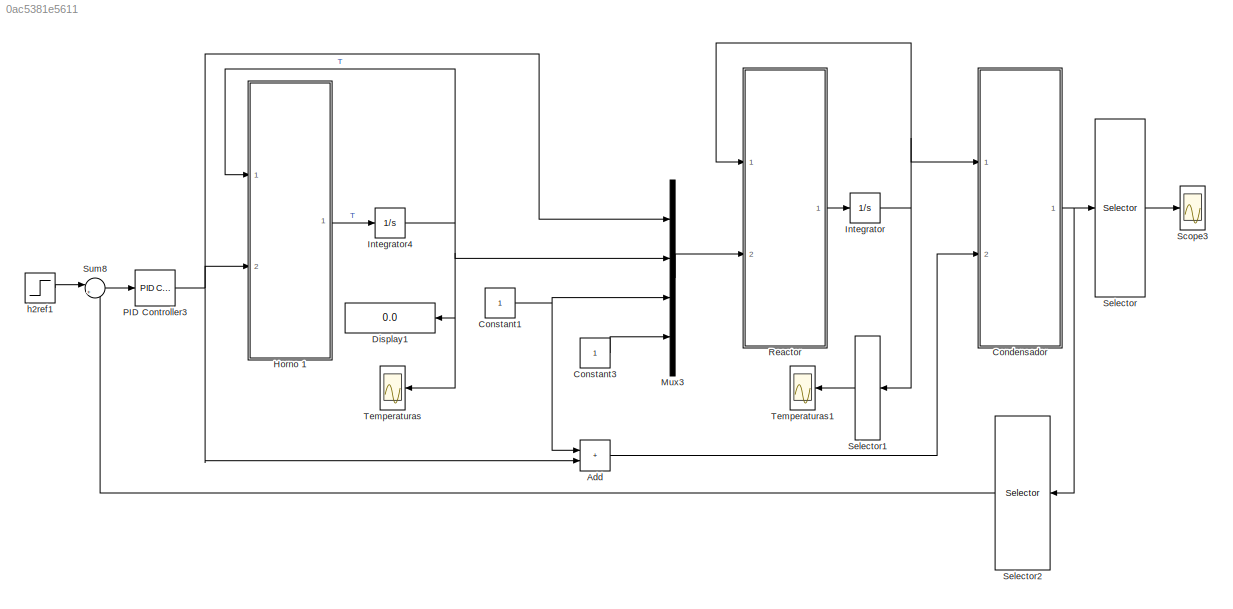
MODEL slx_0ac5381e5611
KIND model
CONFIG AbsTol = auto
CONFIG EnableMultiTasking = off
CONFIG FixedStep = auto
CONFIG MaxStep = auto
CONFIG MinStep = auto
CONFIG RelTol = 1e-3
CONFIG SampleTimeConstraint = Unconstrained
CONFIG Solver = VariableStepAuto
CONFIG SolverName = VariableStepAuto
CONFIG StartTime = 0.0
CONFIG StopTime = 10.0
BLOCK [Sum] Add
  IconShape = rectangular
  Ports = [2, 1]
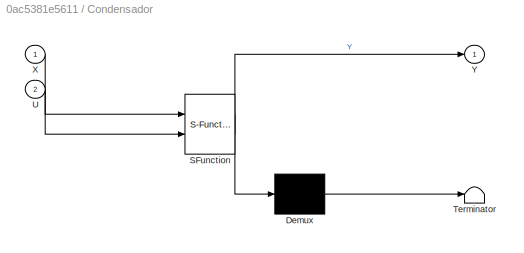
BLOCK [SubSystem] Condensador
  ErrorFcn = Stateflow.Translate.translate
  PermitHierarchicalResolution = ExplicitOnly
  Ports = [2, 1]
  RequestExecContextInheritance = off
  SFBlockType = MATLAB Function
  TreatAsAtomicUnit = on
BLOCK [Demux] Condensador/ Demux 
  Outputs = 1
  Ports = [1, 1]
BLOCK [S-Function] Condensador/ SFunction 
  EnableBusSupport = on
  FunctionName = sf_sfun
  PortCounts = [2 2]
  Ports = [2, 2]
  SFcnIsStateOwnerBlock = off
  SFunctionDeploymentMode = off
  Tag = Stateflow S-Function 3
BLOCK [Terminator] Condensador/ Terminator 
BLOCK [Inport] Condensador/U
  Port = 2
BLOCK [Inport] Condensador/X
BLOCK [Outport] Condensador/Y
BLOCK [Constant] Constant1
BLOCK [Constant] Constant3
BLOCK [Display] Display1
  Decimation = 1
  Ports = [1]
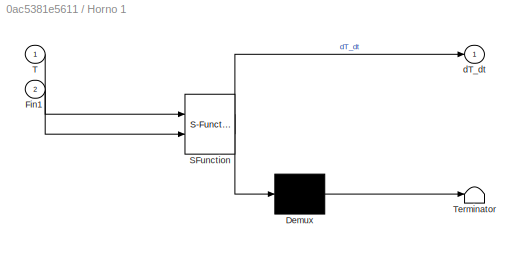
BLOCK [SubSystem] Horno 1
  ErrorFcn = Stateflow.Translate.translate
  PermitHierarchicalResolution = ExplicitOnly
  Ports = [2, 1]
  RequestExecContextInheritance = off
  SFBlockType = MATLAB Function
  TreatAsAtomicUnit = on
BLOCK [Demux] Horno 1/ Demux 
  Outputs = 1
  Ports = [1, 1]
BLOCK [S-Function] Horno 1/ SFunction 
  EnableBusSupport = on
  FunctionName = sf_sfun
  PortCounts = [2 2]
  Ports = [2, 2]
  SFcnIsStateOwnerBlock = off
  SFunctionDeploymentMode = off
  Tag = Stateflow S-Function 2
BLOCK [Terminator] Horno 1/ Terminator 
BLOCK [Inport] Horno 1/Fin1
  Port = 2
BLOCK [Inport] Horno 1/T
BLOCK [Outport] Horno 1/dT_dt
BLOCK [Integrator] Integrator
  InitialCondition = [1;1;1;1;1;1;7]
  Ports = [1, 1]
BLOCK [Integrator] Integrator4
  Ports = [1, 1]
BLOCK [Mux] Mux3
  DisplayOption = bar
  Ports = [4, 1]
BLOCK [Reference] PID Controller3  REF=simulink/Continuous/PID Controller
  Ports = [1, 1]
  SourceBlock = simulink/Continuous/PID Controller
  SourceProductBaseCode = SL
  SourceType = PID 1dof
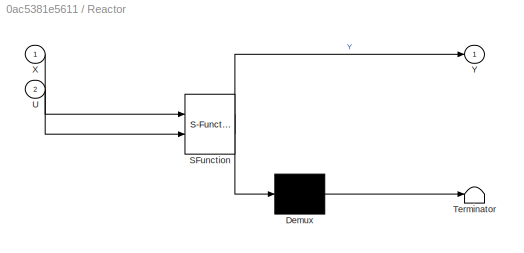
BLOCK [SubSystem] Reactor
  ErrorFcn = Stateflow.Translate.translate
  PermitHierarchicalResolution = ExplicitOnly
  Ports = [2, 1]
  RequestExecContextInheritance = off
  SFBlockType = MATLAB Function
  TreatAsAtomicUnit = on
BLOCK [Demux] Reactor/ Demux 
  Outputs = 1
  Ports = [1, 1]
BLOCK [S-Function] Reactor/ SFunction 
  EnableBusSupport = on
  FunctionName = sf_sfun
  PortCounts = [2 2]
  Ports = [2, 2]
  SFcnIsStateOwnerBlock = off
  SFunctionDeploymentMode = off
  Tag = Stateflow S-Function 1
BLOCK [Terminator] Reactor/ Terminator 
BLOCK [Inport] Reactor/U
  Port = 2
BLOCK [Inport] Reactor/X
BLOCK [Outport] Reactor/Y
BLOCK [Scope] Scope3
  Floating = off
  NumInputPorts = 1
  Ports = [1]
  ScopeSpecificationString = Simulink.scopes.TimeScopeBlockCfg('CurrentConfiguration', extmgr.ConfigurationSet(extmgr.Configuration('Core','General UI',true,'FigureColor',[0.831372549019608 0.815686274509804 0.784313725490196]),extmgr.Configuration('Core','Source UI',true),extmgr.Configuration('Sources','WiredSimulink',true,'DataLoggingVariableName','ScopeData1'),extmgr.Configuration('Visuals','Time Domain',true,'SerializedDi...<+2433ch>
BLOCK [Selector] Selector
  IndexOptions = Index vector (dialog)
  Indices = [1 3 4]
  InputPortWidth = 7
  OutputSizes = 1
  Ports = [1, 1]
BLOCK [Selector] Selector1
  IndexOptions = Index vector (dialog)
  Indices = [1 3 4]
  InputPortWidth = 7
  OutputSizes = 1
  Ports = [1, 1]
BLOCK [Selector] Selector2
  IndexOptions = Index vector (dialog)
  Indices = [3]
  InputPortWidth = 7
  OutputSizes = 1
  Ports = [1, 1]
BLOCK [Sum] Sum8
  Inputs = |+-
  Ports = [2, 1]
BLOCK [Scope] Temperaturas
  Floating = off
  NumInputPorts = 1
  Ports = [1]
  ScopeSpecificationString = Simulink.scopes.TimeScopeBlockCfg('CurrentConfiguration', extmgr.ConfigurationSet(extmgr.Configuration('Core','General UI',true,'FigureColor',[0.831372549019608 0.815686274509804 0.784313725490196]),extmgr.Configuration('Core','Source UI',true),extmgr.Configuration('Sources','WiredSimulink',true),extmgr.Configuration('Visuals','Time Domain',true,'SerializedDisplays',{struct('MinYLimReal','-33.3695...<+2307ch>
BLOCK [Scope] Temperaturas1
  Floating = off
  NumInputPorts = 1
  Ports = [1]
  ScopeSpecificationString = Simulink.scopes.TimeScopeBlockCfg('CurrentConfiguration', extmgr.ConfigurationSet(extmgr.Configuration('Core','General UI',true,'FigureColor',[0.831372549019608 0.815686274509804 0.784313725490196]),extmgr.Configuration('Core','Source UI',true),extmgr.Configuration('Sources','WiredSimulink',true,'DataLoggingVariableName','ScopeData2'),extmgr.Configuration('Visuals','Time Domain',true,'SerializedDi...<+2374ch>
BLOCK [Step] h2ref1
  After = 300
  Before = 200
  SampleTime = 0
  Time = 5
LINE Add:1 -> Condensador:2
NET Condensador:1 -> Selector2:1, Selector:1
NET Constant1:1 -> Add:1, Mux3:3
LINE Constant3:1 -> Mux3:4
LINE Horno 1:1 -> Integrator4:1
NET Integrator4:1 -> Display1:1, Horno 1:1, Mux3:2, Temperaturas:1
NET Integrator:1 -> Condensador:1, Reactor:1, Selector1:1
LINE Mux3:1 -> Reactor:2
NET PID Controller3:1 -> Add:2, Horno 1:2, Mux3:1
LINE Reactor:1 -> Integrator:1
LINE Selector1:1 -> Temperaturas1:1
LINE Selector2:1 -> Sum8:2
LINE Selector:1 -> Scope3:1
LINE Sum8:1 -> PID Controller3:1
LINE h2ref1:1 -> Sum8:1
note: NET lines group one-source signal fan-out (src -> all destinations, sorted); 1:1 wires keep LINE
CHART Reactor states=1 transitions=1
  STATE_LABEL 'eML_blk_kernel()'
  STATE_LABEL 'SCRIPT:\nfunction Y = Reactor(X, U)\n    %% Mapeo de variables\n    Ca = X(1);\n    Cb = X(2);\n    Cc = X(3);\n    Cd = X(4);\n    Ce = X(5);\n    Cf = X(6);\n    T  = X(7);\n    \n    Fin1  = U(1);\n    Fin2  = U(2);\n    T_Ain = U(3);\n    T_Bin = U(4);\n    \n    %% parametros reactor\n    V = 20;\n\n    Tin = 298;\n    Top = 298;\n    UA = 34;\n\n    Fout = Fin1 + Fin2;\n    ci0 = [10;10;0;0;0;0];\n    \n    R = 0.082...<+2150ch>'
CHART Horno 1 states=1 transitions=1
  STATE_LABEL 'eML_blk_kernel()'
  STATE_LABEL 'SCRIPT:\nfunction dT_dt = horno(T, Fin1)\n    %% parametros planta horno\n    V = 10;\n    Tin = 298;\n    Top = 400;\n    rho_a = 1;\n    UA = 35;\n    rho_a = 1;\n    Cp = 1;\n    \n    dT_dt = (Fin1*(Tin - T)/V) - (UA*(Top - T)/(rho_a*V*Cp));\n\nend'
CHART Condensador states=1 transitions=1
  STATE_LABEL 'eML_blk_kernel()'
  STATE_LABEL 'SCRIPT:\nfunction Y = Condensador(X, U)\n    Ca = X(1);\n    Cb = X(2);\n    Cc = X(3);\n    Cd = X(4);\n    Ce = X(5);\n    Cf = X(6);\n    T  = X(7);\n    \n    Y = [Ca*U; 0; Cc*U; Cd*U; 0; 0; 270];\nend'
CHART  states=0 transitions=0
CHART  states=0 transitions=0
CHART  states=0 transitions=0
